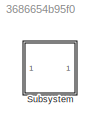
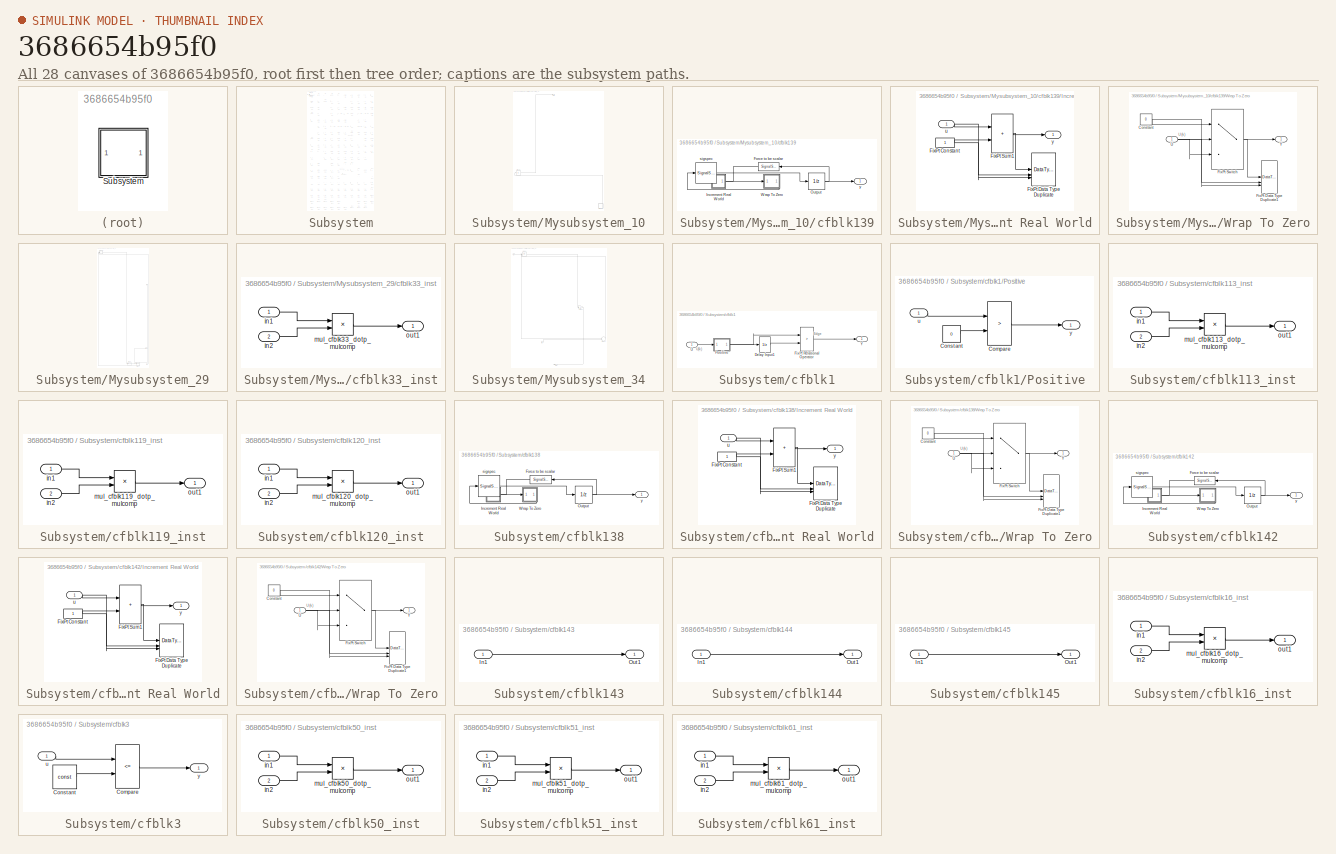
[diagram: thumbnail index - all 28 canvases of the model, root first then tree order]
MODEL slx_3686654b95f0
KIND model
CONFIG AbsTol = auto
CONFIG EnableMultiTasking = off
CONFIG FixedStep = auto
CONFIG MaxStep = auto
CONFIG MinStep = auto
CONFIG RelTol = 1e-3
CONFIG SampleTimeConstraint = Unconstrained
CONFIG SolverName = VariableStepAuto
CONFIG StartTime = 0.0
CONFIG StopTime = 10.0
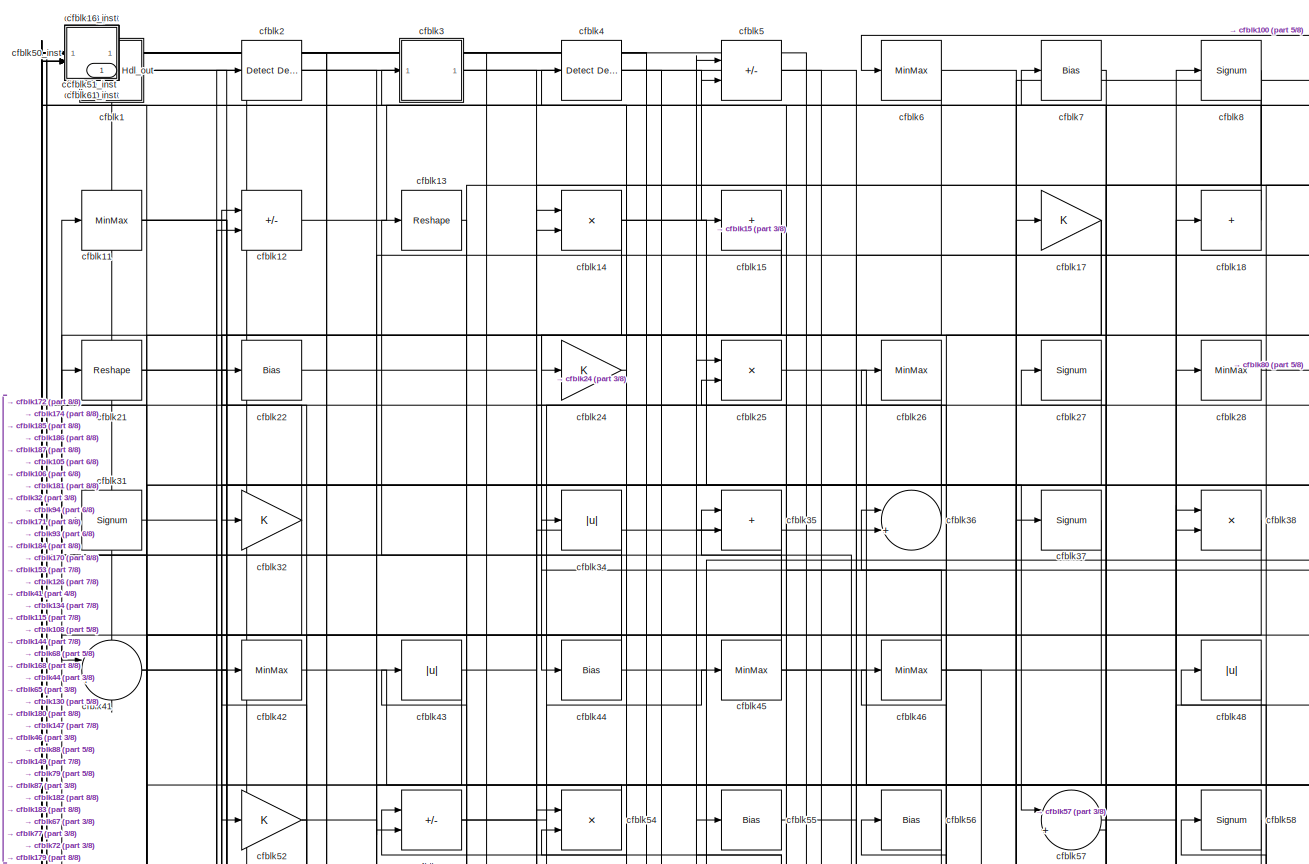
[diagram: Subsystem - part 1/8, full width, top band]
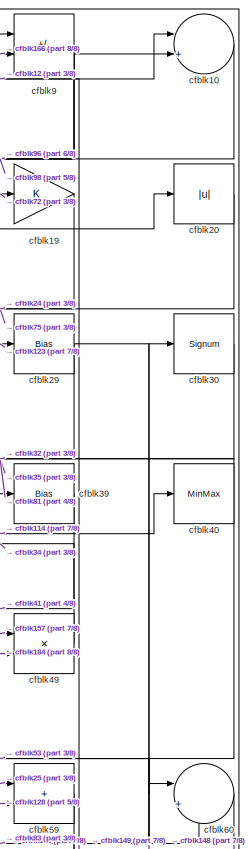
[diagram: Subsystem - part 2/8, top right region]
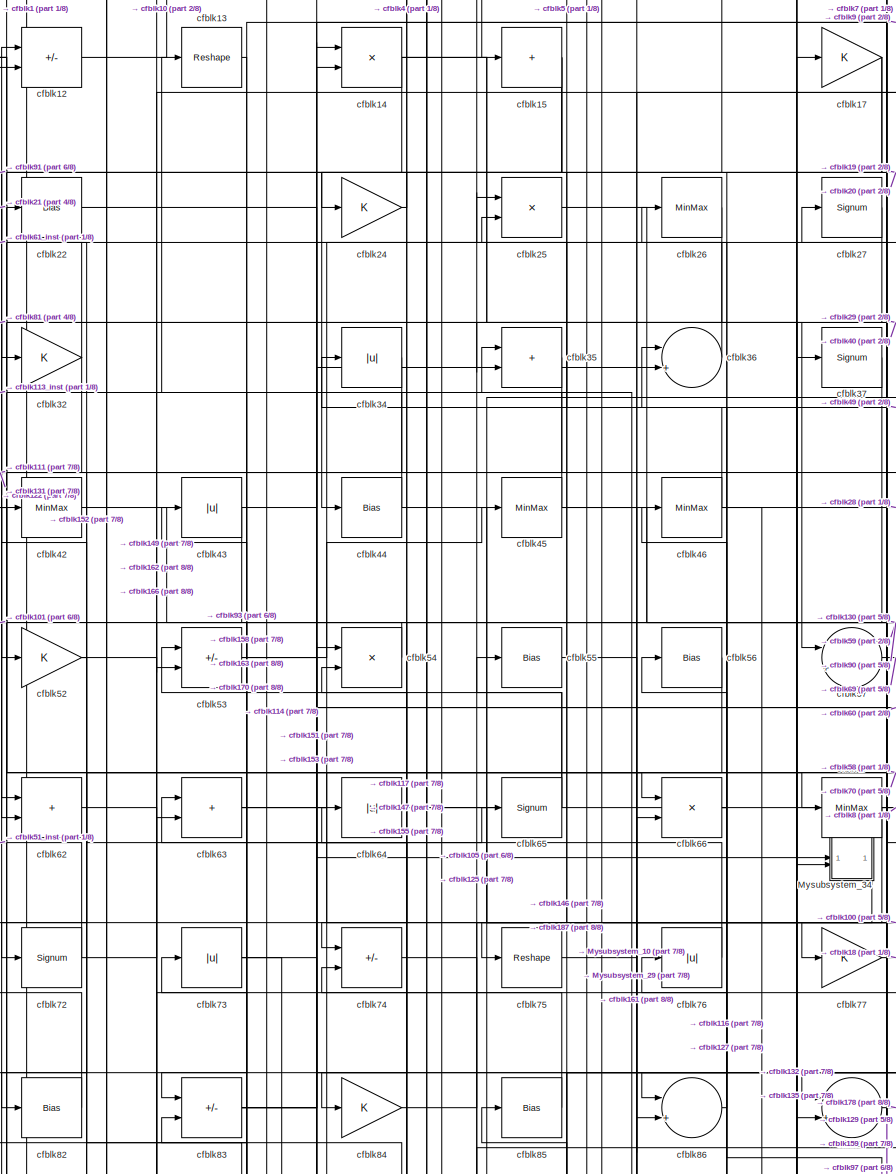
[diagram: Subsystem - part 3/8, top center region]
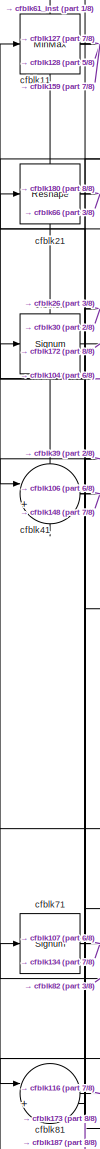
[diagram: Subsystem - part 4/8, top left region]
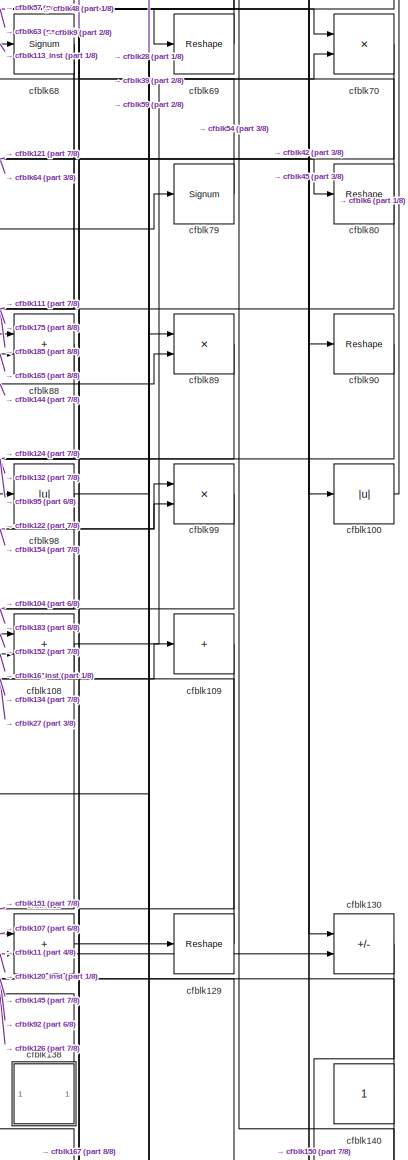
[diagram: Subsystem - part 5/8, middle right region]
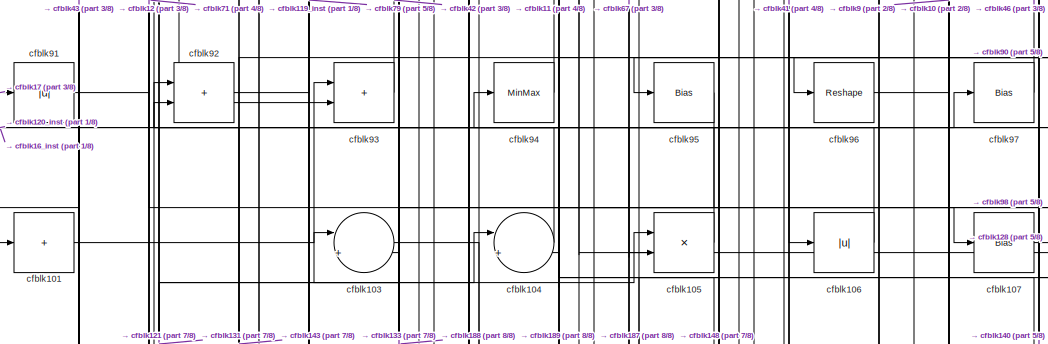
[diagram: Subsystem - part 6/8, central region]
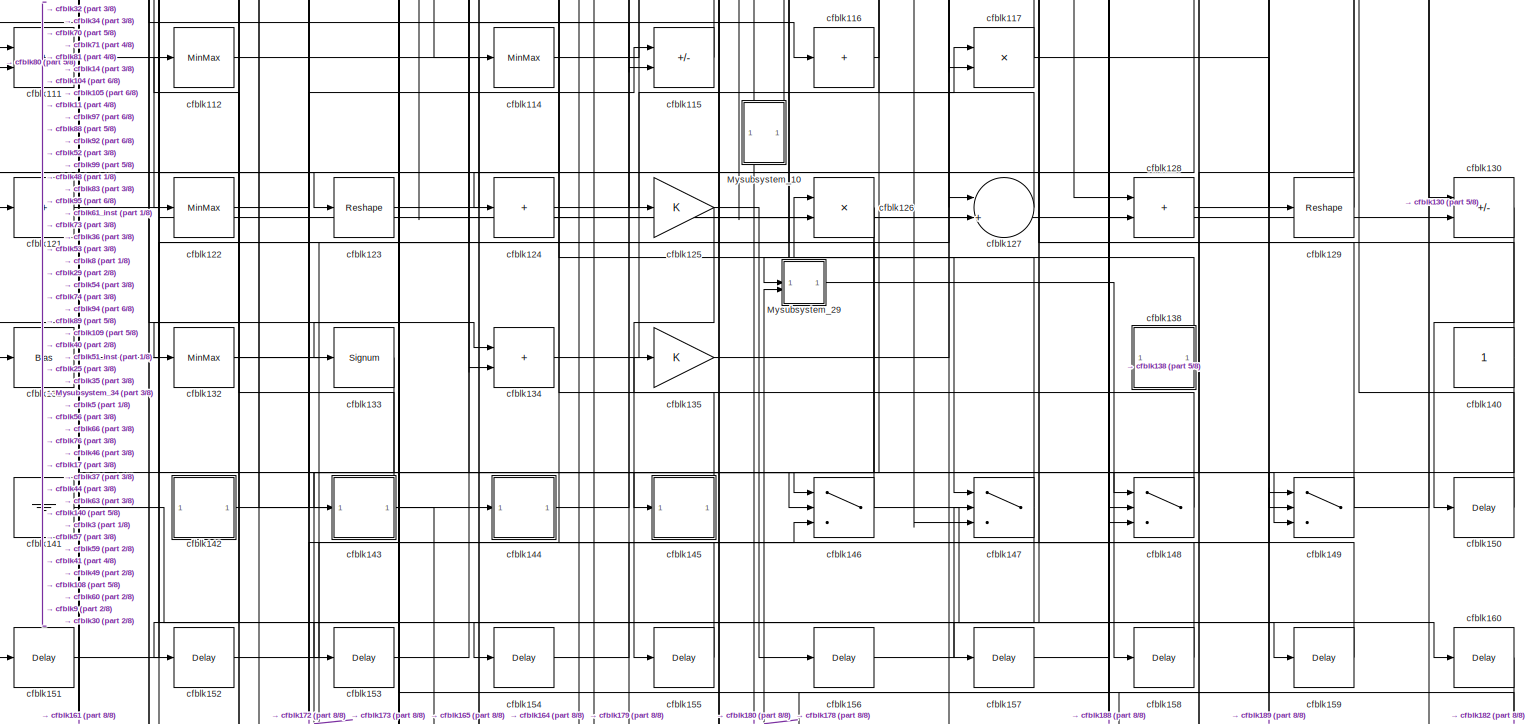
[diagram: Subsystem - part 7/8, full width, bottom band]
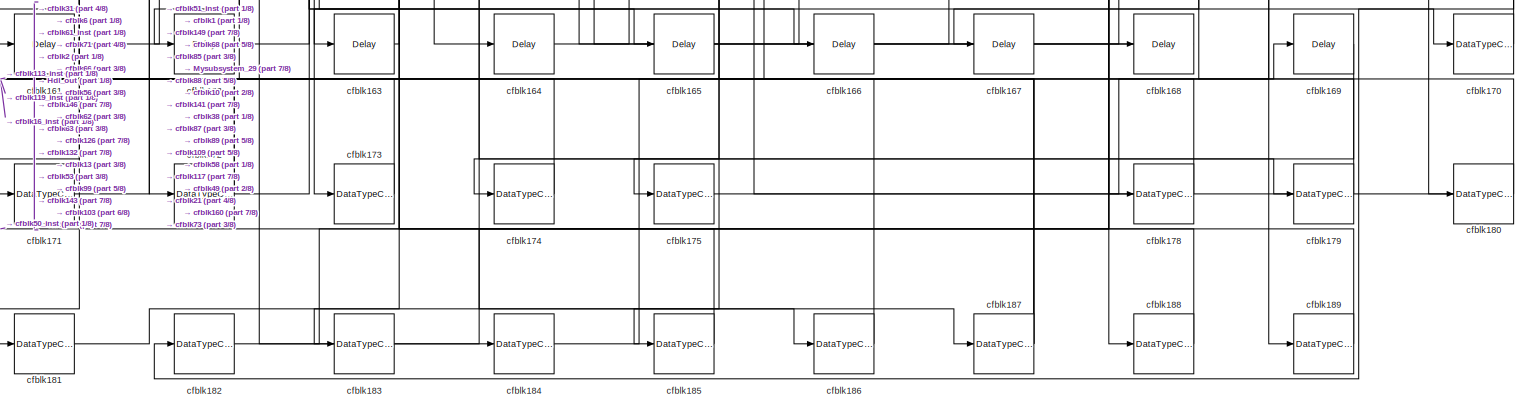
[diagram: Subsystem - part 8/8, full width, bottom band]
BLOCK [SubSystem] Subsystem
BLOCK [Outport] Subsystem/Hdl_out
  OutDataTypeStr = uint8
  SampleTime = 1
BLOCK [SubSystem] Subsystem/Mysubsystem_10
BLOCK [Outport] Subsystem/Mysubsystem_10/Out1
  SampleTime = 1
BLOCK [Abs] Subsystem/Mysubsystem_10/cfblk102
  SaturateOnIntegerOverflow = off
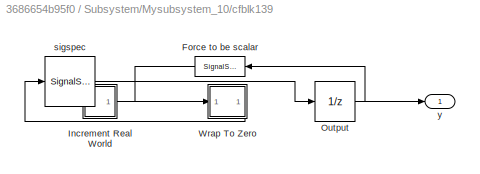
BLOCK [SubSystem] Subsystem/Mysubsystem_10/cfblk139
BLOCK [SignalSpecification] Subsystem/Mysubsystem_10/cfblk139/Force to be scalar
  Dimensions = 1
  DisableCoverage = on
BLOCK [SubSystem] Subsystem/Mysubsystem_10/cfblk139/Increment Real World
BLOCK [Constant] Subsystem/Mysubsystem_10/cfblk139/Increment Real World/FixPt Constant
  DisableCoverage = on
  OutDataTypeStr = Inherit: Inherit via back propagation
  SampleTime = -1
BLOCK [DataTypeDuplicate] Subsystem/Mysubsystem_10/cfblk139/Increment Real World/FixPt Data Type Duplicate
  DisableCoverage = on
  NumInputPorts = 3
BLOCK [Sum] Subsystem/Mysubsystem_10/cfblk139/Increment Real World/FixPt Sum1
  IconShape = rectangular
  InputSameDT = on
  LockScale = on
  OutDataTypeStr = Inherit: Inherit via back propagation
BLOCK [Inport] Subsystem/Mysubsystem_10/cfblk139/Increment Real World/u
  OutDataTypeStr = uint8
  SampleTime = 1
BLOCK [Outport] Subsystem/Mysubsystem_10/cfblk139/Increment Real World/y
  SampleTime = 1
BLOCK [UnitDelay] Subsystem/Mysubsystem_10/cfblk139/Output
  HasFrameUpgradeWarning = on
  InitialCondition = 0.0
  SampleTime = tsamp
BLOCK [SubSystem] Subsystem/Mysubsystem_10/cfblk139/Wrap To Zero
BLOCK [Constant] Subsystem/Mysubsystem_10/cfblk139/Wrap To Zero/Constant
  DisableCoverage = on
  OutDataTypeStr = Inherit: Inherit via back propagation
  SampleTime = -1
  Value = 0
BLOCK [DataTypeDuplicate] Subsystem/Mysubsystem_10/cfblk139/Wrap To Zero/FixPt Data Type Duplicate1
  DisableCoverage = on
  NumInputPorts = 3
BLOCK [Switch] Subsystem/Mysubsystem_10/cfblk139/Wrap To Zero/FixPt Switch
  Criteria = u2 > Threshold
  InputSameDT = off
  OutDataTypeStr = Inherit: Inherit via back propagation
  SaturateOnIntegerOverflow = off
  Threshold = Threshold
  ZeroCross = off
BLOCK [Inport] Subsystem/Mysubsystem_10/cfblk139/Wrap To Zero/U
  OutDataTypeStr = uint8
  SampleTime = 1
BLOCK [Outport] Subsystem/Mysubsystem_10/cfblk139/Wrap To Zero/Y
  SampleTime = 1
BLOCK [SignalSpecification] Subsystem/Mysubsystem_10/cfblk139/sigspec
  Dimensions = 1
  OutDataTypeStr = uint8
BLOCK [Outport] Subsystem/Mysubsystem_10/cfblk139/y
  SampleTime = 1
BLOCK [SubSystem] Subsystem/Mysubsystem_29
BLOCK [Inport] Subsystem/Mysubsystem_29/In1
  OutDataTypeStr = fixdt(0, 16, 7)
  PortDimensions = 1
  SampleTime = 1
BLOCK [Inport] Subsystem/Mysubsystem_29/In2
  OutDataTypeStr = uint8
  Port = 2
  PortDimensions = 1
  SampleTime = 1
BLOCK [Outport] Subsystem/Mysubsystem_29/Out1
  SampleTime = 1
BLOCK [DataTypeConversion] Subsystem/Mysubsystem_29/cfblk176
  RndMeth = Floor
  SaturateOnIntegerOverflow = off
BLOCK [DataTypeConversion] Subsystem/Mysubsystem_29/cfblk177
  OutDataTypeStr = uint8
  RndMeth = Floor
  SaturateOnIntegerOverflow = off
BLOCK [SubSystem] Subsystem/Mysubsystem_29/cfblk33_inst
BLOCK [Inport] Subsystem/Mysubsystem_29/cfblk33_inst/in1
  OutDataTypeStr = uint8
  SampleTime = 1
BLOCK [Inport] Subsystem/Mysubsystem_29/cfblk33_inst/in2
  OutDataTypeStr = uint8
  Port = 2
  SampleTime = 1
BLOCK [Product] Subsystem/Mysubsystem_29/cfblk33_inst/mul_cfblk33_dotp_mulcomp
  Inputs = **
  OutDataTypeStr = uint16
  SampleTime = 1
BLOCK [Outport] Subsystem/Mysubsystem_29/cfblk33_inst/out1
  OutDataTypeStr = uint16
  SampleTime = 1
BLOCK [SubSystem] Subsystem/Mysubsystem_34
BLOCK [Inport] Subsystem/Mysubsystem_34/In1
  OutDataTypeStr = uint8
  PortDimensions = 1
  SampleTime = 1
BLOCK [Inport] Subsystem/Mysubsystem_34/In2
  OutDataTypeStr = uint8
  Port = 2
  PortDimensions = 1
  SampleTime = 1
BLOCK [Outport] Subsystem/Mysubsystem_34/Out1
  SampleTime = 1
BLOCK [Sum] Subsystem/Mysubsystem_34/cfblk110
  Inputs = |++
BLOCK [Bias] Subsystem/Mysubsystem_34/cfblk23
  Bias = 0.0
  SaturateOnIntegerOverflow = off
BLOCK [Gain] Subsystem/Mysubsystem_34/cfblk78
BLOCK [SubSystem] Subsystem/cfblk1
BLOCK [UnitDelay] Subsystem/cfblk1/Delay Input1
  Description = Store in Global RAM
  DisableCoverage = on
  HasFrameUpgradeWarning = on
  InitialCondition = vinit
  SampleTime = -1
BLOCK [RelationalOperator] Subsystem/cfblk1/FixPt Relational Operator
  InputSameDT = off
  Operator = >
  OutDataTypeStr = fixdt(0, 8)
  ZeroCross = off
BLOCK [SubSystem] Subsystem/cfblk1/Positive
BLOCK [RelationalOperator] Subsystem/cfblk1/Positive/Compare
  Operator = >
  OutDataTypeStr = boolean
  ZeroCross = off
BLOCK [Constant] Subsystem/cfblk1/Positive/Constant
  DisableCoverage = on
  OutDataTypeStr = Inherit: Inherit via back propagation
  PreserveConstantTs = on
  SampleTime = -1
  Value = 0
BLOCK [Inport] Subsystem/cfblk1/Positive/u
  OutDataTypeStr = uint8
  SampleTime = 1
BLOCK [Outport] Subsystem/cfblk1/Positive/y
  SampleTime = 1
BLOCK [Inport] Subsystem/cfblk1/U
  OutDataTypeStr = uint8
  SampleTime = 1
BLOCK [Outport] Subsystem/cfblk1/Y
  SampleTime = 1
BLOCK [Sum] Subsystem/cfblk10
  Inputs = |++
  OutDataTypeStr = uint8
BLOCK [Abs] Subsystem/cfblk100
  OutDataTypeStr = uint8
  SaturateOnIntegerOverflow = off
BLOCK [Sum] Subsystem/cfblk101
  IconShape = rectangular
  Inputs = +
  OutDataTypeStr = uint8
BLOCK [Sum] Subsystem/cfblk103
  Inputs = |++
  OutDataTypeStr = uint8
BLOCK [Sum] Subsystem/cfblk104
  Inputs = |++
  OutDataTypeStr = uint8
BLOCK [Product] Subsystem/cfblk105
  Inputs = */
  OutDataTypeStr = uint8
  RndMeth = Zero
  SaturateOnIntegerOverflow = on
BLOCK [Abs] Subsystem/cfblk106
  OutDataTypeStr = uint8
  SaturateOnIntegerOverflow = off
BLOCK [Bias] Subsystem/cfblk107
  Bias = 0.0
  SaturateOnIntegerOverflow = off
BLOCK [Sum] Subsystem/cfblk108
  IconShape = rectangular
  OutDataTypeStr = uint8
BLOCK [Sum] Subsystem/cfblk109
  IconShape = rectangular
  Inputs = +
  OutDataTypeStr = uint8
BLOCK [MinMax] Subsystem/cfblk11
  OutDataTypeStr = uint8
BLOCK [Sum] Subsystem/cfblk111
  IconShape = rectangular
  OutDataTypeStr = uint8
BLOCK [MinMax] Subsystem/cfblk112
  OutDataTypeStr = uint8
BLOCK [SubSystem] Subsystem/cfblk113_inst
BLOCK [Inport] Subsystem/cfblk113_inst/in1
  OutDataTypeStr = uint8
  SampleTime = 1
BLOCK [Inport] Subsystem/cfblk113_inst/in2
  OutDataTypeStr = uint8
  Port = 2
  SampleTime = 1
BLOCK [Product] Subsystem/cfblk113_inst/mul_cfblk113_dotp_mulcomp
  Inputs = **
  OutDataTypeStr = uint8
  SampleTime = 1
BLOCK [Outport] Subsystem/cfblk113_inst/out1
  OutDataTypeStr = uint8
  SampleTime = 1
BLOCK [MinMax] Subsystem/cfblk114
  OutDataTypeStr = uint8
BLOCK [Sum] Subsystem/cfblk115
  IconShape = rectangular
  Inputs = +-
  OutDataTypeStr = uint8
BLOCK [Sum] Subsystem/cfblk116
  IconShape = rectangular
  Inputs = +
  OutDataTypeStr = uint8
BLOCK [Product] Subsystem/cfblk117
  Inputs = */
  OutDataTypeStr = uint8
  RndMeth = Zero
  SaturateOnIntegerOverflow = on
BLOCK [SubSystem] Subsystem/cfblk119_inst
BLOCK [Inport] Subsystem/cfblk119_inst/in1
  OutDataTypeStr = uint8
  SampleTime = 1
BLOCK [Inport] Subsystem/cfblk119_inst/in2
  OutDataTypeStr = uint8
  Port = 2
  SampleTime = 1
BLOCK [Product] Subsystem/cfblk119_inst/mul_cfblk119_dotp_mulcomp
  Inputs = **
  OutDataTypeStr = uint8
  SampleTime = 1
BLOCK [Outport] Subsystem/cfblk119_inst/out1
  OutDataTypeStr = uint8
  SampleTime = 1
BLOCK [Sum] Subsystem/cfblk12
  IconShape = rectangular
  Inputs = +-
  OutDataTypeStr = uint8
BLOCK [SubSystem] Subsystem/cfblk120_inst
BLOCK [Inport] Subsystem/cfblk120_inst/in1
  OutDataTypeStr = uint8
  SampleTime = 1
BLOCK [Inport] Subsystem/cfblk120_inst/in2
  OutDataTypeStr = uint8
  Port = 2
  SampleTime = 1
BLOCK [Product] Subsystem/cfblk120_inst/mul_cfblk120_dotp_mulcomp
  Inputs = **
  OutDataTypeStr = uint8
  SampleTime = 1
BLOCK [Outport] Subsystem/cfblk120_inst/out1
  OutDataTypeStr = uint8
  SampleTime = 1
BLOCK [Sum] Subsystem/cfblk121
  IconShape = rectangular
  Inputs = +
  OutDataTypeStr = uint8
BLOCK [MinMax] Subsystem/cfblk122
  OutDataTypeStr = uint8
BLOCK [Reshape] Subsystem/cfblk123
BLOCK [Sum] Subsystem/cfblk124
  IconShape = rectangular
  Inputs = +
  OutDataTypeStr = uint8
BLOCK [Gain] Subsystem/cfblk125
  OutDataTypeStr = uint8
BLOCK [Product] Subsystem/cfblk126
  Inputs = */
  OutDataTypeStr = uint8
  RndMeth = Zero
  SaturateOnIntegerOverflow = on
BLOCK [Sum] Subsystem/cfblk127
  Inputs = |++
  OutDataTypeStr = uint8
BLOCK [Sum] Subsystem/cfblk128
  IconShape = rectangular
  OutDataTypeStr = uint8
BLOCK [Reshape] Subsystem/cfblk129
BLOCK [Reshape] Subsystem/cfblk13
BLOCK [Sum] Subsystem/cfblk130
  IconShape = rectangular
  Inputs = +-
  OutDataTypeStr = uint8
BLOCK [Bias] Subsystem/cfblk131
  Bias = 0.0
  SaturateOnIntegerOverflow = off
BLOCK [MinMax] Subsystem/cfblk132
  OutDataTypeStr = uint8
BLOCK [Signum] Subsystem/cfblk133
BLOCK [Sum] Subsystem/cfblk134
  IconShape = rectangular
  OutDataTypeStr = uint8
BLOCK [Gain] Subsystem/cfblk135
  OutDataTypeStr = uint8
BLOCK [SubSystem] Subsystem/cfblk138
BLOCK [SignalSpecification] Subsystem/cfblk138/Force to be scalar
  Dimensions = 1
  DisableCoverage = on
BLOCK [SubSystem] Subsystem/cfblk138/Increment Real World
BLOCK [Constant] Subsystem/cfblk138/Increment Real World/FixPt Constant
  DisableCoverage = on
  OutDataTypeStr = Inherit: Inherit via back propagation
  SampleTime = -1
BLOCK [DataTypeDuplicate] Subsystem/cfblk138/Increment Real World/FixPt Data Type Duplicate
  DisableCoverage = on
  NumInputPorts = 3
BLOCK [Sum] Subsystem/cfblk138/Increment Real World/FixPt Sum1
  IconShape = rectangular
  InputSameDT = on
  LockScale = on
  OutDataTypeStr = Inherit: Inherit via back propagation
BLOCK [Inport] Subsystem/cfblk138/Increment Real World/u
  OutDataTypeStr = uint16
  SampleTime = 1
BLOCK [Outport] Subsystem/cfblk138/Increment Real World/y
  SampleTime = 1
BLOCK [UnitDelay] Subsystem/cfblk138/Output
  HasFrameUpgradeWarning = on
  InitialCondition = 0.0
  SampleTime = tsamp
BLOCK [SubSystem] Subsystem/cfblk138/Wrap To Zero
BLOCK [Constant] Subsystem/cfblk138/Wrap To Zero/Constant
  DisableCoverage = on
  OutDataTypeStr = Inherit: Inherit via back propagation
  SampleTime = -1
  Value = 0
BLOCK [DataTypeDuplicate] Subsystem/cfblk138/Wrap To Zero/FixPt Data Type Duplicate1
  DisableCoverage = on
  NumInputPorts = 3
BLOCK [Switch] Subsystem/cfblk138/Wrap To Zero/FixPt Switch
  Criteria = u2 > Threshold
  InputSameDT = off
  OutDataTypeStr = Inherit: Inherit via back propagation
  SaturateOnIntegerOverflow = off
  Threshold = Threshold
  ZeroCross = off
BLOCK [Inport] Subsystem/cfblk138/Wrap To Zero/U
  OutDataTypeStr = uint16
  SampleTime = 1
BLOCK [Outport] Subsystem/cfblk138/Wrap To Zero/Y
  SampleTime = 1
BLOCK [SignalSpecification] Subsystem/cfblk138/sigspec
  Dimensions = 1
  OutDataTypeStr = uint16
BLOCK [Outport] Subsystem/cfblk138/y
  SampleTime = 1
BLOCK [Product] Subsystem/cfblk14
  Inputs = */
  OutDataTypeStr = uint8
  RndMeth = Zero
  SaturateOnIntegerOverflow = on
BLOCK [Constant] Subsystem/cfblk140
  OutDataTypeStr = uint8
  SampleTime = -1
BLOCK [Ground] Subsystem/cfblk141
BLOCK [SubSystem] Subsystem/cfblk142
BLOCK [SignalSpecification] Subsystem/cfblk142/Force to be scalar
  Dimensions = 1
  DisableCoverage = on
BLOCK [SubSystem] Subsystem/cfblk142/Increment Real World
BLOCK [Constant] Subsystem/cfblk142/Increment Real World/FixPt Constant
  DisableCoverage = on
  OutDataTypeStr = Inherit: Inherit via back propagation
  SampleTime = -1
BLOCK [DataTypeDuplicate] Subsystem/cfblk142/Increment Real World/FixPt Data Type Duplicate
  DisableCoverage = on
  NumInputPorts = 3
BLOCK [Sum] Subsystem/cfblk142/Increment Real World/FixPt Sum1
  IconShape = rectangular
  InputSameDT = on
  LockScale = on
  OutDataTypeStr = Inherit: Inherit via back propagation
BLOCK [Inport] Subsystem/cfblk142/Increment Real World/u
  OutDataTypeStr = uint8
  SampleTime = 1
BLOCK [Outport] Subsystem/cfblk142/Increment Real World/y
  SampleTime = 1
BLOCK [UnitDelay] Subsystem/cfblk142/Output
  HasFrameUpgradeWarning = on
  InitialCondition = 0.0
  SampleTime = tsamp
BLOCK [SubSystem] Subsystem/cfblk142/Wrap To Zero
BLOCK [Constant] Subsystem/cfblk142/Wrap To Zero/Constant
  DisableCoverage = on
  OutDataTypeStr = Inherit: Inherit via back propagation
  SampleTime = -1
  Value = 0
BLOCK [DataTypeDuplicate] Subsystem/cfblk142/Wrap To Zero/FixPt Data Type Duplicate1
  DisableCoverage = on
  NumInputPorts = 3
BLOCK [Switch] Subsystem/cfblk142/Wrap To Zero/FixPt Switch
  Criteria = u2 > Threshold
  InputSameDT = off
  OutDataTypeStr = Inherit: Inherit via back propagation
  SaturateOnIntegerOverflow = off
  Threshold = Threshold
  ZeroCross = off
BLOCK [Inport] Subsystem/cfblk142/Wrap To Zero/U
  OutDataTypeStr = uint8
  SampleTime = 1
BLOCK [Outport] Subsystem/cfblk142/Wrap To Zero/Y
  SampleTime = 1
BLOCK [SignalSpecification] Subsystem/cfblk142/sigspec
  Dimensions = 1
  OutDataTypeStr = uint8
BLOCK [Outport] Subsystem/cfblk142/y
  SampleTime = 1
BLOCK [SubSystem] Subsystem/cfblk143
BLOCK [Inport] Subsystem/cfblk143/In1
  OutDataTypeStr = uint8
  PortDimensions = 1
  SampleTime = 1
BLOCK [Outport] Subsystem/cfblk143/Out1
  SampleTime = 1
BLOCK [SubSystem] Subsystem/cfblk144
BLOCK [Inport] Subsystem/cfblk144/In1
  OutDataTypeStr = uint8
  PortDimensions = 1
  SampleTime = 1
BLOCK [Outport] Subsystem/cfblk144/Out1
  SampleTime = 1
BLOCK [SubSystem] Subsystem/cfblk145
BLOCK [Inport] Subsystem/cfblk145/In1
  OutDataTypeStr = uint8
  PortDimensions = 1
  SampleTime = 1
BLOCK [Outport] Subsystem/cfblk145/Out1
  SampleTime = 1
BLOCK [Switch] Subsystem/cfblk146
  InputSameDT = off
  OutDataTypeStr = uint8
  SaturateOnIntegerOverflow = off
BLOCK [Switch] Subsystem/cfblk147
  InputSameDT = off
  OutDataTypeStr = uint8
  SaturateOnIntegerOverflow = off
BLOCK [Switch] Subsystem/cfblk148
  InputSameDT = off
  OutDataTypeStr = uint8
  SaturateOnIntegerOverflow = off
BLOCK [Switch] Subsystem/cfblk149
  InputSameDT = off
  OutDataTypeStr = uint8
  SaturateOnIntegerOverflow = off
BLOCK [Sum] Subsystem/cfblk15
  IconShape = rectangular
  Inputs = +
  OutDataTypeStr = uint8
BLOCK [Delay] Subsystem/cfblk150
  InputPortMap = u0
  SampleTime = 1
BLOCK [Delay] Subsystem/cfblk151
  InputPortMap = u0
  SampleTime = 1
BLOCK [Delay] Subsystem/cfblk152
  InputPortMap = u0
  SampleTime = 1
BLOCK [Delay] Subsystem/cfblk153
  InputPortMap = u0
  SampleTime = 1
BLOCK [Delay] Subsystem/cfblk154
  InputPortMap = u0
  SampleTime = 1
BLOCK [Delay] Subsystem/cfblk155
  InputPortMap = u0
  SampleTime = 1
BLOCK [Delay] Subsystem/cfblk156
  InputPortMap = u0
  SampleTime = 1
BLOCK [Delay] Subsystem/cfblk157
  InputPortMap = u0
  SampleTime = 1
BLOCK [Delay] Subsystem/cfblk158
  InputPortMap = u0
  SampleTime = 1
BLOCK [Delay] Subsystem/cfblk159
  InputPortMap = u0
  SampleTime = 1
BLOCK [Delay] Subsystem/cfblk160
  InputPortMap = u0
  SampleTime = 1
BLOCK [Delay] Subsystem/cfblk161
  InputPortMap = u0
  SampleTime = 1
BLOCK [Delay] Subsystem/cfblk162
  InputPortMap = u0
  SampleTime = 1
BLOCK [Delay] Subsystem/cfblk163
  InputPortMap = u0
  SampleTime = 1
BLOCK [Delay] Subsystem/cfblk164
  InputPortMap = u0
  SampleTime = 1
BLOCK [Delay] Subsystem/cfblk165
  InputPortMap = u0
  SampleTime = 1
BLOCK [Delay] Subsystem/cfblk166
  InputPortMap = u0
  SampleTime = 1
BLOCK [Delay] Subsystem/cfblk167
  InputPortMap = u0
  SampleTime = 1
BLOCK [Delay] Subsystem/cfblk168
  InputPortMap = u0
  SampleTime = 1
BLOCK [Delay] Subsystem/cfblk169
  InputPortMap = u0
  SampleTime = 1
BLOCK [SubSystem] Subsystem/cfblk16_inst
BLOCK [Inport] Subsystem/cfblk16_inst/in1
  OutDataTypeStr = uint8
  SampleTime = 1
BLOCK [Inport] Subsystem/cfblk16_inst/in2
  OutDataTypeStr = uint8
  Port = 2
  SampleTime = 1
BLOCK [Product] Subsystem/cfblk16_inst/mul_cfblk16_dotp_mulcomp
  Inputs = **
  OutDataTypeStr = uint8
  SampleTime = 1
BLOCK [Outport] Subsystem/cfblk16_inst/out1
  OutDataTypeStr = uint8
  SampleTime = 1
BLOCK [Gain] Subsystem/cfblk17
  OutDataTypeStr = uint8
BLOCK [DataTypeConversion] Subsystem/cfblk170
  OutDataTypeStr = uint8
  RndMeth = Floor
  SaturateOnIntegerOverflow = off
BLOCK [DataTypeConversion] Subsystem/cfblk171
  OutDataTypeStr = uint8
  RndMeth = Floor
  SaturateOnIntegerOverflow = off
BLOCK [DataTypeConversion] Subsystem/cfblk172
  OutDataTypeStr = uint8
  RndMeth = Floor
  SaturateOnIntegerOverflow = off
BLOCK [DataTypeConversion] Subsystem/cfblk173
  OutDataTypeStr = uint8
  RndMeth = Floor
  SaturateOnIntegerOverflow = off
BLOCK [DataTypeConversion] Subsystem/cfblk174
  OutDataTypeStr = uint8
  RndMeth = Floor
  SaturateOnIntegerOverflow = off
BLOCK [DataTypeConversion] Subsystem/cfblk175
  OutDataTypeStr = uint8
  RndMeth = Floor
  SaturateOnIntegerOverflow = off
BLOCK [DataTypeConversion] Subsystem/cfblk178
  OutDataTypeStr = uint8
  RndMeth = Floor
  SaturateOnIntegerOverflow = off
BLOCK [DataTypeConversion] Subsystem/cfblk179
  OutDataTypeStr = uint8
  RndMeth = Floor
  SaturateOnIntegerOverflow = off
BLOCK [Sum] Subsystem/cfblk18
  IconShape = rectangular
  Inputs = +
  OutDataTypeStr = uint8
BLOCK [DataTypeConversion] Subsystem/cfblk180
  OutDataTypeStr = uint8
  RndMeth = Floor
  SaturateOnIntegerOverflow = off
BLOCK [DataTypeConversion] Subsystem/cfblk181
  OutDataTypeStr = uint8
  RndMeth = Floor
  SaturateOnIntegerOverflow = off
BLOCK [DataTypeConversion] Subsystem/cfblk182
  OutDataTypeStr = uint8
  RndMeth = Floor
  SaturateOnIntegerOverflow = off
BLOCK [DataTypeConversion] Subsystem/cfblk183
  OutDataTypeStr = uint8
  RndMeth = Floor
  SaturateOnIntegerOverflow = off
BLOCK [DataTypeConversion] Subsystem/cfblk184
  OutDataTypeStr = uint8
  RndMeth = Floor
  SaturateOnIntegerOverflow = off
BLOCK [DataTypeConversion] Subsystem/cfblk185
  OutDataTypeStr = uint8
  RndMeth = Floor
  SaturateOnIntegerOverflow = off
BLOCK [DataTypeConversion] Subsystem/cfblk186
  OutDataTypeStr = uint8
  RndMeth = Floor
  SaturateOnIntegerOverflow = off
BLOCK [DataTypeConversion] Subsystem/cfblk187
  OutDataTypeStr = uint8
  RndMeth = Floor
  SaturateOnIntegerOverflow = off
BLOCK [DataTypeConversion] Subsystem/cfblk188
  OutDataTypeStr = uint8
  RndMeth = Floor
  SaturateOnIntegerOverflow = off
BLOCK [DataTypeConversion] Subsystem/cfblk189
  OutDataTypeStr = uint8
  RndMeth = Floor
  SaturateOnIntegerOverflow = off
BLOCK [Gain] Subsystem/cfblk19
  OutDataTypeStr = uint8
BLOCK [Reference] Subsystem/cfblk2  REF=simulink/Logic and Bit
Operations/Detect
Decrease
  LibrarySourceBlock = hdlsllib/Logic and Bit\nOperations/Detect\nDecrease
  SourceBlock = simulink/Logic and Bit\nOperations/Detect\nDecrease
  SourceType = Detect Decrease
BLOCK [Abs] Subsystem/cfblk20
  OutDataTypeStr = uint8
  SaturateOnIntegerOverflow = off
BLOCK [Reshape] Subsystem/cfblk21
BLOCK [Bias] Subsystem/cfblk22
  Bias = 0.0
  SaturateOnIntegerOverflow = off
BLOCK [Gain] Subsystem/cfblk24
  OutDataTypeStr = uint8
BLOCK [Product] Subsystem/cfblk25
  Inputs = */
  OutDataTypeStr = uint8
  RndMeth = Zero
  SaturateOnIntegerOverflow = on
BLOCK [MinMax] Subsystem/cfblk26
  OutDataTypeStr = uint8
BLOCK [Signum] Subsystem/cfblk27
BLOCK [MinMax] Subsystem/cfblk28
  OutDataTypeStr = uint8
BLOCK [Bias] Subsystem/cfblk29
  Bias = 0.0
  SaturateOnIntegerOverflow = off
BLOCK [SubSystem] Subsystem/cfblk3
BLOCK [RelationalOperator] Subsystem/cfblk3/Compare
  Operator = <=
  OutDataTypeStr = fixdt(0, 8)
BLOCK [Constant] Subsystem/cfblk3/Constant
  DisableCoverage = on
  OutDataTypeStr = Inherit: Inherit via back propagation
  SampleTime = -1
  Value = const
BLOCK [Inport] Subsystem/cfblk3/u
  OutDataTypeStr = uint8
  SampleTime = 1
BLOCK [Outport] Subsystem/cfblk3/y
  SampleTime = 1
BLOCK [Signum] Subsystem/cfblk30
BLOCK [Signum] Subsystem/cfblk31
BLOCK [Gain] Subsystem/cfblk32
  OutDataTypeStr = uint8
BLOCK [Abs] Subsystem/cfblk34
  OutDataTypeStr = uint8
  SaturateOnIntegerOverflow = off
BLOCK [Sum] Subsystem/cfblk35
  IconShape = rectangular
  OutDataTypeStr = uint8
BLOCK [Sum] Subsystem/cfblk36
  Inputs = |++
  OutDataTypeStr = uint8
BLOCK [Signum] Subsystem/cfblk37
BLOCK [Product] Subsystem/cfblk38
  Inputs = */
  OutDataTypeStr = uint8
  RndMeth = Zero
  SaturateOnIntegerOverflow = on
BLOCK [Bias] Subsystem/cfblk39
  Bias = 0.0
  SaturateOnIntegerOverflow = off
BLOCK [Reference] Subsystem/cfblk4  REF=simulink/Logic and Bit
Operations/Detect
Decrease
  LibrarySourceBlock = hdlsllib/Logic and Bit\nOperations/Detect\nDecrease
  SourceBlock = simulink/Logic and Bit\nOperations/Detect\nDecrease
  SourceType = Detect Decrease
BLOCK [MinMax] Subsystem/cfblk40
  OutDataTypeStr = uint8
BLOCK [Sum] Subsystem/cfblk41
  Inputs = |++
  OutDataTypeStr = uint8
BLOCK [MinMax] Subsystem/cfblk42
  OutDataTypeStr = uint8
BLOCK [Abs] Subsystem/cfblk43
  OutDataTypeStr = uint8
  SaturateOnIntegerOverflow = off
BLOCK [Bias] Subsystem/cfblk44
  Bias = 0.0
  SaturateOnIntegerOverflow = off
BLOCK [MinMax] Subsystem/cfblk45
  OutDataTypeStr = uint8
BLOCK [MinMax] Subsystem/cfblk46
  OutDataTypeStr = uint8
BLOCK [Abs] Subsystem/cfblk48
  OutDataTypeStr = uint8
  SaturateOnIntegerOverflow = off
BLOCK [Product] Subsystem/cfblk49
  Inputs = */
  OutDataTypeStr = uint8
  RndMeth = Zero
  SaturateOnIntegerOverflow = on
BLOCK [Sum] Subsystem/cfblk5
  IconShape = rectangular
  Inputs = +-
  OutDataTypeStr = uint8
BLOCK [SubSystem] Subsystem/cfblk50_inst
BLOCK [Inport] Subsystem/cfblk50_inst/in1
  OutDataTypeStr = uint8
  SampleTime = 1
BLOCK [Inport] Subsystem/cfblk50_inst/in2
  OutDataTypeStr = uint8
  Port = 2
  SampleTime = 1
BLOCK [Product] Subsystem/cfblk50_inst/mul_cfblk50_dotp_mulcomp
  Inputs = **
  OutDataTypeStr = uint8
  SampleTime = 1
BLOCK [Outport] Subsystem/cfblk50_inst/out1
  OutDataTypeStr = uint8
  SampleTime = 1
BLOCK [SubSystem] Subsystem/cfblk51_inst
BLOCK [Inport] Subsystem/cfblk51_inst/in1
  OutDataTypeStr = uint8
  SampleTime = 1
BLOCK [Inport] Subsystem/cfblk51_inst/in2
  OutDataTypeStr = uint8
  Port = 2
  SampleTime = 1
BLOCK [Product] Subsystem/cfblk51_inst/mul_cfblk51_dotp_mulcomp
  Inputs = **
  OutDataTypeStr = uint8
  SampleTime = 1
BLOCK [Outport] Subsystem/cfblk51_inst/out1
  OutDataTypeStr = uint8
  SampleTime = 1
BLOCK [Gain] Subsystem/cfblk52
  OutDataTypeStr = uint8
BLOCK [Sum] Subsystem/cfblk53
  IconShape = rectangular
  Inputs = +-
  OutDataTypeStr = uint8
BLOCK [Product] Subsystem/cfblk54
  Inputs = */
  OutDataTypeStr = uint8
  RndMeth = Zero
  SaturateOnIntegerOverflow = on
BLOCK [Bias] Subsystem/cfblk55
  Bias = 0.0
  SaturateOnIntegerOverflow = off
BLOCK [Bias] Subsystem/cfblk56
  Bias = 0.0
  SaturateOnIntegerOverflow = off
BLOCK [Sum] Subsystem/cfblk57
  Inputs = |++
  OutDataTypeStr = uint8
BLOCK [Signum] Subsystem/cfblk58
BLOCK [Sum] Subsystem/cfblk59
  IconShape = rectangular
  OutDataTypeStr = uint8
BLOCK [MinMax] Subsystem/cfblk6
  OutDataTypeStr = uint8
BLOCK [Sum] Subsystem/cfblk60
  Inputs = |++
  OutDataTypeStr = uint8
BLOCK [SubSystem] Subsystem/cfblk61_inst
BLOCK [Inport] Subsystem/cfblk61_inst/in1
  OutDataTypeStr = uint8
  SampleTime = 1
BLOCK [Inport] Subsystem/cfblk61_inst/in2
  OutDataTypeStr = uint8
  Port = 2
  SampleTime = 1
BLOCK [Product] Subsystem/cfblk61_inst/mul_cfblk61_dotp_mulcomp
  Inputs = **
  OutDataTypeStr = uint8
  SampleTime = 1
BLOCK [Outport] Subsystem/cfblk61_inst/out1
  OutDataTypeStr = uint8
  SampleTime = 1
BLOCK [Sum] Subsystem/cfblk62
  IconShape = rectangular
  OutDataTypeStr = uint8
BLOCK [Sum] Subsystem/cfblk63
  IconShape = rectangular
  OutDataTypeStr = uint8
BLOCK [Abs] Subsystem/cfblk64
  OutDataTypeStr = uint8
  SaturateOnIntegerOverflow = off
BLOCK [Signum] Subsystem/cfblk65
BLOCK [Product] Subsystem/cfblk66
  Inputs = */
  OutDataTypeStr = uint8
  RndMeth = Zero
  SaturateOnIntegerOverflow = on
BLOCK [MinMax] Subsystem/cfblk67
  OutDataTypeStr = uint8
BLOCK [Signum] Subsystem/cfblk68
BLOCK [Reshape] Subsystem/cfblk69
BLOCK [Bias] Subsystem/cfblk7
  Bias = 0.0
  SaturateOnIntegerOverflow = off
BLOCK [Product] Subsystem/cfblk70
  Inputs = */
  OutDataTypeStr = uint8
  RndMeth = Zero
  SaturateOnIntegerOverflow = on
BLOCK [Signum] Subsystem/cfblk71
BLOCK [Signum] Subsystem/cfblk72
BLOCK [Abs] Subsystem/cfblk73
  OutDataTypeStr = uint8
  SaturateOnIntegerOverflow = off
BLOCK [Sum] Subsystem/cfblk74
  IconShape = rectangular
  Inputs = +-
  OutDataTypeStr = uint8
BLOCK [Reshape] Subsystem/cfblk75
BLOCK [Abs] Subsystem/cfblk76
  OutDataTypeStr = uint8
  SaturateOnIntegerOverflow = off
BLOCK [Gain] Subsystem/cfblk77
  OutDataTypeStr = uint8
BLOCK [Signum] Subsystem/cfblk79
BLOCK [Signum] Subsystem/cfblk8
BLOCK [Reshape] Subsystem/cfblk80
BLOCK [Sum] Subsystem/cfblk81
  Inputs = |++
  OutDataTypeStr = uint8
BLOCK [Bias] Subsystem/cfblk82
  Bias = 0.0
  SaturateOnIntegerOverflow = off
BLOCK [Sum] Subsystem/cfblk83
  IconShape = rectangular
  Inputs = +-
  OutDataTypeStr = uint8
BLOCK [Gain] Subsystem/cfblk84
  OutDataTypeStr = uint8
BLOCK [Bias] Subsystem/cfblk85
  Bias = 0.0
  SaturateOnIntegerOverflow = off
BLOCK [Sum] Subsystem/cfblk86
  Inputs = |++
  OutDataTypeStr = uint8
BLOCK [Sum] Subsystem/cfblk87
  Inputs = |++
  OutDataTypeStr = uint8
BLOCK [Sum] Subsystem/cfblk88
  IconShape = rectangular
  OutDataTypeStr = uint8
BLOCK [Product] Subsystem/cfblk89
  Inputs = */
  OutDataTypeStr = uint8
  RndMeth = Zero
  SaturateOnIntegerOverflow = on
BLOCK [Sum] Subsystem/cfblk9
  IconShape = rectangular
  Inputs = +-
  OutDataTypeStr = uint8
BLOCK [Reshape] Subsystem/cfblk90
BLOCK [Abs] Subsystem/cfblk91
  OutDataTypeStr = uint8
  SaturateOnIntegerOverflow = off
BLOCK [Sum] Subsystem/cfblk92
  IconShape = rectangular
  OutDataTypeStr = uint8
BLOCK [Sum] Subsystem/cfblk93
  IconShape = rectangular
  OutDataTypeStr = uint8
BLOCK [MinMax] Subsystem/cfblk94
  OutDataTypeStr = uint8
BLOCK [Bias] Subsystem/cfblk95
  Bias = 0.0
  SaturateOnIntegerOverflow = off
BLOCK [Reshape] Subsystem/cfblk96
BLOCK [Bias] Subsystem/cfblk97
  Bias = 0.0
  SaturateOnIntegerOverflow = off
BLOCK [Abs] Subsystem/cfblk98
  OutDataTypeStr = uint8
  SaturateOnIntegerOverflow = off
BLOCK [Product] Subsystem/cfblk99
  Inputs = */
  OutDataTypeStr = uint8
  RndMeth = Zero
  SaturateOnIntegerOverflow = on
ANNOTATION Subsystem/Mysubsystem_10/cfblk139/Wrap To Zero: U(k)
ANNOTATION Subsystem/cfblk1: Edge
ANNOTATION Subsystem/cfblk1: U(k)
ANNOTATION Subsystem/cfblk138/Wrap To Zero: U(k)
ANNOTATION Subsystem/cfblk142/Wrap To Zero: U(k)
LINE Subsystem/Mysubsystem_10/cfblk102:1 -> Subsystem/Mysubsystem_10/Out1:1
LINE Subsystem/Mysubsystem_10/cfblk139:1 -> Subsystem/Mysubsystem_10/cfblk102:1
LINE Subsystem/Mysubsystem_10:1 -> Subsystem/cfblk35:1
LINE Subsystem/Mysubsystem_29/In1:1 -> Subsystem/Mysubsystem_29/cfblk177:1
LINE Subsystem/Mysubsystem_29/In2:1 -> Subsystem/Mysubsystem_29/cfblk33_inst:2
LINE Subsystem/Mysubsystem_29/cfblk176:1 -> Subsystem/Mysubsystem_29/Out1:1
LINE Subsystem/Mysubsystem_29/cfblk177:1 -> Subsystem/Mysubsystem_29/cfblk33_inst:1
LINE Subsystem/Mysubsystem_29/cfblk33_inst/in1:1 -> Subsystem/Mysubsystem_29/cfblk33_inst/mul_cfblk33_dotp_mulcomp:1
LINE Subsystem/Mysubsystem_29/cfblk33_inst/in2:1 -> Subsystem/Mysubsystem_29/cfblk33_inst/mul_cfblk33_dotp_mulcomp:2
LINE Subsystem/Mysubsystem_29/cfblk33_inst/mul_cfblk33_dotp_mulcomp:1 -> Subsystem/Mysubsystem_29/cfblk33_inst/out1:1
LINE Subsystem/Mysubsystem_29/cfblk33_inst:1 -> Subsystem/Mysubsystem_29/cfblk176:1
LINE Subsystem/Mysubsystem_29:1 -> Subsystem/cfblk158:1
LINE Subsystem/Mysubsystem_34/In1:1 -> Subsystem/Mysubsystem_34/cfblk110:1
LINE Subsystem/Mysubsystem_34/In2:1 -> Subsystem/Mysubsystem_34/cfblk110:2
LINE Subsystem/Mysubsystem_34/cfblk110:1 -> Subsystem/Mysubsystem_34/cfblk23:1
LINE Subsystem/Mysubsystem_34/cfblk23:1 -> Subsystem/Mysubsystem_34/cfblk78:1
LINE Subsystem/Mysubsystem_34/cfblk78:1 -> Subsystem/Mysubsystem_34/Out1:1
LINE Subsystem/Mysubsystem_34:1 -> Subsystem/Mysubsystem_29:1
LINE Subsystem/cfblk100:1 -> Subsystem/cfblk6:1
LINE Subsystem/cfblk101:1 -> Subsystem/cfblk93:1
LINE Subsystem/cfblk103:1 -> Subsystem/cfblk187:1
LINE Subsystem/cfblk104:1 -> Subsystem/cfblk11:1
LINE Subsystem/cfblk105:1 -> Subsystem/cfblk16_inst:1
LINE Subsystem/cfblk106:1 -> Subsystem/cfblk120_inst:2
LINE Subsystem/cfblk107:1 -> Subsystem/cfblk128:1
NET Subsystem/cfblk108:1 -> Subsystem/cfblk151:1, Subsystem/cfblk70:2
LINE Subsystem/cfblk109:1 -> Subsystem/cfblk167:1
LINE Subsystem/cfblk10:1 -> Subsystem/cfblk96:1
LINE Subsystem/cfblk111:1 -> Subsystem/cfblk123:1
LINE Subsystem/cfblk112:1 -> Subsystem/cfblk179:1
LINE Subsystem/cfblk113_inst/in1:1 -> Subsystem/cfblk113_inst/mul_cfblk113_dotp_mulcomp:1
LINE Subsystem/cfblk113_inst/in2:1 -> Subsystem/cfblk113_inst/mul_cfblk113_dotp_mulcomp:2
LINE Subsystem/cfblk113_inst/mul_cfblk113_dotp_mulcomp:1 -> Subsystem/cfblk113_inst/out1:1
LINE Subsystem/cfblk113_inst:1 -> Subsystem/cfblk68:1
LINE Subsystem/cfblk114:1 -> Subsystem/cfblk40:1
LINE Subsystem/cfblk115:1 -> Subsystem/cfblk51_inst:1
LINE Subsystem/cfblk116:1 -> Subsystem/cfblk56:1
NET Subsystem/cfblk117:1 -> Subsystem/cfblk189:1, Subsystem/cfblk63:1
LINE Subsystem/cfblk119_inst/in1:1 -> Subsystem/cfblk119_inst/mul_cfblk119_dotp_mulcomp:1
LINE Subsystem/cfblk119_inst/in2:1 -> Subsystem/cfblk119_inst/mul_cfblk119_dotp_mulcomp:2
LINE Subsystem/cfblk119_inst/mul_cfblk119_dotp_mulcomp:1 -> Subsystem/cfblk119_inst/out1:1
LINE Subsystem/cfblk119_inst:1 -> Subsystem/cfblk93:2
NET Subsystem/cfblk11:1 -> Subsystem/cfblk127:2, Subsystem/cfblk128:2, Subsystem/cfblk159:1
LINE Subsystem/cfblk120_inst/in1:1 -> Subsystem/cfblk120_inst/mul_cfblk120_dotp_mulcomp:1
LINE Subsystem/cfblk120_inst/in2:1 -> Subsystem/cfblk120_inst/mul_cfblk120_dotp_mulcomp:2
LINE Subsystem/cfblk120_inst/mul_cfblk120_dotp_mulcomp:1 -> Subsystem/cfblk120_inst/out1:1
LINE Subsystem/cfblk120_inst:1 -> Subsystem/cfblk130:2
LINE Subsystem/cfblk121:1 -> Subsystem/cfblk97:1
LINE Subsystem/cfblk122:1 -> Subsystem/cfblk99:1
LINE Subsystem/cfblk123:1 -> Subsystem/cfblk29:1
LINE Subsystem/cfblk124:1 -> Subsystem/cfblk117:1
NET Subsystem/cfblk125:1 -> Subsystem/cfblk155:1, Subsystem/cfblk156:1
NET Subsystem/cfblk126:1 -> Subsystem/cfblk161:1, Subsystem/cfblk173:1
LINE Subsystem/cfblk127:1 -> Subsystem/cfblk76:1
LINE Subsystem/cfblk128:1 -> Subsystem/cfblk59:2
LINE Subsystem/cfblk129:1 -> Subsystem/cfblk27:1
LINE Subsystem/cfblk12:1 -> Subsystem/cfblk10:1
LINE Subsystem/cfblk130:1 -> Subsystem/cfblk150:1
NET Subsystem/cfblk131:1 -> Subsystem/cfblk104:1, Subsystem/cfblk105:1, Subsystem/cfblk149:3
NET Subsystem/cfblk132:1 -> Subsystem/cfblk165:1, Subsystem/cfblk37:1
LINE Subsystem/cfblk133:1 -> Subsystem/cfblk143:1
LINE Subsystem/cfblk134:1 -> Subsystem/cfblk109:1
LINE Subsystem/cfblk135:1 -> Subsystem/cfblk17:1
LINE Subsystem/cfblk138:1 -> Subsystem/cfblk126:1
LINE Subsystem/cfblk13:1 -> Subsystem/cfblk163:1
NET Subsystem/cfblk140:1 -> Subsystem/cfblk145:1, Subsystem/cfblk92:1
LINE Subsystem/cfblk141:1 -> Subsystem/cfblk188:1
LINE Subsystem/cfblk142:1 -> Subsystem/cfblk115:1
LINE Subsystem/cfblk143/In1:1 -> Subsystem/cfblk143/Out1:1
NET Subsystem/cfblk143:1 -> Subsystem/cfblk164:1, Subsystem/cfblk92:2
LINE Subsystem/cfblk144/In1:1 -> Subsystem/cfblk144/Out1:1
LINE Subsystem/cfblk144:1 -> Subsystem/cfblk89:2
LINE Subsystem/cfblk145/In1:1 -> Subsystem/cfblk145/Out1:1
LINE Subsystem/cfblk145:1 -> Subsystem/cfblk135:1
NET Subsystem/cfblk146:1 -> Subsystem/cfblk160:1, Subsystem/cfblk25:2
NET Subsystem/cfblk147:1 -> Subsystem/cfblk154:1, Subsystem/cfblk74:2
LINE Subsystem/cfblk148:1 -> Subsystem/cfblk94:1
NET Subsystem/cfblk149:1 -> Subsystem/cfblk30:1, Subsystem/cfblk3:1
NET Subsystem/cfblk14:1 -> Subsystem/Mysubsystem_34:2, Subsystem/cfblk122:1, Subsystem/cfblk127:1
LINE Subsystem/cfblk150:1 -> Subsystem/cfblk9:1
LINE Subsystem/cfblk151:1 -> Subsystem/cfblk14:1
LINE Subsystem/cfblk152:1 -> Subsystem/cfblk108:1
LINE Subsystem/cfblk153:1 -> Subsystem/cfblk36:2
LINE Subsystem/cfblk154:1 -> Subsystem/cfblk99:2
LINE Subsystem/cfblk155:1 -> Subsystem/cfblk54:2
LINE Subsystem/cfblk156:1 -> Subsystem/cfblk147:2
LINE Subsystem/cfblk157:1 -> Subsystem/cfblk49:1
LINE Subsystem/cfblk158:1 -> Subsystem/cfblk83:2
LINE Subsystem/cfblk159:1 -> Subsystem/cfblk57:2
NET Subsystem/cfblk15:1 -> Subsystem/cfblk44:1, Subsystem/cfblk62:2, Subsystem/cfblk84:1
LINE Subsystem/cfblk160:1 -> Subsystem/cfblk182:1
LINE Subsystem/cfblk161:1 -> Subsystem/cfblk66:2
LINE Subsystem/cfblk162:1 -> Subsystem/cfblk63:2
LINE Subsystem/cfblk163:1 -> Subsystem/cfblk53:1
LINE Subsystem/cfblk164:1 -> Subsystem/cfblk149:1
LINE Subsystem/cfblk165:1 -> Subsystem/cfblk88:2
LINE Subsystem/cfblk166:1 -> Subsystem/cfblk10:2
LINE Subsystem/cfblk167:1 -> Subsystem/cfblk89:1
LINE Subsystem/cfblk168:1 -> Subsystem/cfblk1:1
LINE Subsystem/cfblk169:1 -> Subsystem/cfblk174:1
LINE Subsystem/cfblk16_inst/in1:1 -> Subsystem/cfblk16_inst/mul_cfblk16_dotp_mulcomp:1
LINE Subsystem/cfblk16_inst/in2:1 -> Subsystem/cfblk16_inst/mul_cfblk16_dotp_mulcomp:2
LINE Subsystem/cfblk16_inst/mul_cfblk16_dotp_mulcomp:1 -> Subsystem/cfblk16_inst/out1:1
LINE Subsystem/cfblk16_inst:1 -> Subsystem/cfblk108:2
LINE Subsystem/cfblk170:1 -> Subsystem/cfblk73:1
LINE Subsystem/cfblk171:1 -> Subsystem/cfblk2:1
NET Subsystem/cfblk172:1 -> Subsystem/cfblk119_inst:2, Subsystem/cfblk146:3, Subsystem/cfblk16_inst:2
LINE Subsystem/cfblk173:1 -> Subsystem/cfblk31:1
LINE Subsystem/cfblk174:1 -> Subsystem/cfblk113_inst:2
LINE Subsystem/cfblk175:1 -> Subsystem/cfblk169:1
LINE Subsystem/cfblk178:1 -> Subsystem/Mysubsystem_29:2
LINE Subsystem/cfblk179:1 -> Subsystem/cfblk58:1
NET Subsystem/cfblk17:1 -> Subsystem/cfblk86:1, Subsystem/cfblk91:1
NET Subsystem/cfblk180:1 -> Subsystem/Hdl_out:1, Subsystem/cfblk112:1
LINE Subsystem/cfblk181:1 -> Subsystem/cfblk186:1
LINE Subsystem/cfblk182:1 -> Subsystem/cfblk38:1
LINE Subsystem/cfblk183:1 -> Subsystem/cfblk38:2
LINE Subsystem/cfblk184:1 -> Subsystem/cfblk49:2
LINE Subsystem/cfblk185:1 -> Subsystem/cfblk50_inst:1
LINE Subsystem/cfblk186:1 -> Subsystem/cfblk50_inst:2
NET Subsystem/cfblk187:1 -> Subsystem/cfblk61_inst:1, Subsystem/cfblk71:1, Subsystem/cfblk85:1
LINE Subsystem/cfblk188:1 -> Subsystem/cfblk103:1
LINE Subsystem/cfblk189:1 -> Subsystem/cfblk103:2
LINE Subsystem/cfblk18:1 -> Subsystem/cfblk7:1
LINE Subsystem/cfblk19:1 -> Subsystem/cfblk75:1
LINE Subsystem/cfblk1:1 -> Subsystem/cfblk57:1
LINE Subsystem/cfblk20:1 -> Subsystem/cfblk24:1
NET Subsystem/cfblk21:1 -> Subsystem/cfblk180:1, Subsystem/cfblk66:1
LINE Subsystem/cfblk22:1 -> Subsystem/Mysubsystem_34:1
LINE Subsystem/cfblk24:1 -> Subsystem/cfblk4:1
LINE Subsystem/cfblk25:1 -> Subsystem/cfblk59:1
LINE Subsystem/cfblk26:1 -> Subsystem/cfblk81:2
LINE Subsystem/cfblk27:1 -> Subsystem/cfblk62:1
LINE Subsystem/cfblk28:1 -> Subsystem/cfblk80:1
NET Subsystem/cfblk29:1 -> Subsystem/cfblk35:2, Subsystem/cfblk60:1
LINE Subsystem/cfblk2:1 -> Subsystem/cfblk170:1
LINE Subsystem/cfblk30:1 -> Subsystem/cfblk81:1
LINE Subsystem/cfblk31:1 -> Subsystem/cfblk172:1
NET Subsystem/cfblk32:1 -> Subsystem/cfblk111:1, Subsystem/cfblk61_inst:2
LINE Subsystem/cfblk34:1 -> Subsystem/cfblk131:1
LINE Subsystem/cfblk35:1 -> Subsystem/cfblk152:1
LINE Subsystem/cfblk36:1 -> Subsystem/cfblk12:1
LINE Subsystem/cfblk37:1 -> Subsystem/cfblk74:1
LINE Subsystem/cfblk38:1 -> Subsystem/cfblk181:1
LINE Subsystem/cfblk39:1 -> Subsystem/cfblk41:1
LINE Subsystem/cfblk3:1 -> Subsystem/cfblk115:2
NET Subsystem/cfblk40:1 -> Subsystem/cfblk32:1, Subsystem/cfblk53:2
NET Subsystem/cfblk41:1 -> Subsystem/cfblk106:1, Subsystem/cfblk148:3
LINE Subsystem/cfblk42:1 -> Subsystem/cfblk130:1
NET Subsystem/cfblk43:1 -> Subsystem/cfblk101:1, Subsystem/cfblk14:2
NET Subsystem/cfblk44:1 -> Subsystem/cfblk113_inst:1, Subsystem/cfblk117:2
NET Subsystem/cfblk45:1 -> Subsystem/cfblk13:1, Subsystem/cfblk86:2, Subsystem/cfblk90:1
NET Subsystem/cfblk46:1 -> Subsystem/cfblk147:3, Subsystem/cfblk28:1, Subsystem/cfblk5:2
LINE Subsystem/cfblk48:1 -> Subsystem/cfblk153:1
LINE Subsystem/cfblk49:1 -> Subsystem/cfblk34:1
LINE Subsystem/cfblk4:1 -> Subsystem/cfblk15:1
LINE Subsystem/cfblk50_inst/in1:1 -> Subsystem/cfblk50_inst/mul_cfblk50_dotp_mulcomp:1
LINE Subsystem/cfblk50_inst/in2:1 -> Subsystem/cfblk50_inst/mul_cfblk50_dotp_mulcomp:2
LINE Subsystem/cfblk50_inst/mul_cfblk50_dotp_mulcomp:1 -> Subsystem/cfblk50_inst/out1:1
LINE Subsystem/cfblk50_inst:1 -> Subsystem/cfblk184:1
LINE Subsystem/cfblk51_inst/in1:1 -> Subsystem/cfblk51_inst/mul_cfblk51_dotp_mulcomp:1
LINE Subsystem/cfblk51_inst/in2:1 -> Subsystem/cfblk51_inst/mul_cfblk51_dotp_mulcomp:2
LINE Subsystem/cfblk51_inst/mul_cfblk51_dotp_mulcomp:1 -> Subsystem/cfblk51_inst/out1:1
NET Subsystem/cfblk51_inst:1 -> Subsystem/cfblk144:1, Subsystem/cfblk168:1
NET Subsystem/cfblk52:1 -> Subsystem/cfblk149:2, Subsystem/cfblk82:1
NET Subsystem/cfblk53:1 -> Subsystem/cfblk146:1, Subsystem/cfblk45:1
LINE Subsystem/cfblk54:1 -> Subsystem/cfblk52:1
LINE Subsystem/cfblk55:1 -> Subsystem/cfblk67:1
LINE Subsystem/cfblk56:1 -> Subsystem/cfblk162:1
LINE Subsystem/cfblk57:1 -> Subsystem/cfblk69:1
LINE Subsystem/cfblk58:1 -> Subsystem/cfblk72:1
LINE Subsystem/cfblk59:1 -> Subsystem/cfblk157:1
LINE Subsystem/cfblk5:1 -> Subsystem/cfblk147:1
LINE Subsystem/cfblk60:1 -> Subsystem/cfblk148:1
LINE Subsystem/cfblk61_inst/in1:1 -> Subsystem/cfblk61_inst/mul_cfblk61_dotp_mulcomp:1
LINE Subsystem/cfblk61_inst/in2:1 -> Subsystem/cfblk61_inst/mul_cfblk61_dotp_mulcomp:2
LINE Subsystem/cfblk61_inst/mul_cfblk61_dotp_mulcomp:1 -> Subsystem/cfblk61_inst/out1:1
NET Subsystem/cfblk61_inst:1 -> Subsystem/cfblk126:2, Subsystem/cfblk41:2
LINE Subsystem/cfblk62:1 -> Subsystem/cfblk166:1
NET Subsystem/cfblk63:1 -> Subsystem/cfblk100:1, Subsystem/cfblk70:1
LINE Subsystem/cfblk64:1 -> Subsystem/cfblk129:1
NET Subsystem/cfblk65:1 -> Subsystem/cfblk43:1, Subsystem/cfblk5:1
NET Subsystem/cfblk66:1 -> Subsystem/cfblk146:2, Subsystem/cfblk36:1
NET Subsystem/cfblk67:1 -> Subsystem/cfblk105:2, Subsystem/cfblk8:1
NET Subsystem/cfblk68:1 -> Subsystem/cfblk175:1, Subsystem/cfblk185:1
LINE Subsystem/cfblk69:1 -> Subsystem/cfblk54:1
NET Subsystem/cfblk6:1 -> Subsystem/cfblk171:1, Subsystem/cfblk88:1
LINE Subsystem/cfblk70:1 -> Subsystem/cfblk121:1
NET Subsystem/cfblk71:1 -> Subsystem/cfblk107:1, Subsystem/cfblk134:1
NET Subsystem/cfblk72:1 -> Subsystem/cfblk19:1, Subsystem/cfblk51_inst:2
NET Subsystem/cfblk73:1 -> Subsystem/cfblk114:1, Subsystem/cfblk87:2
LINE Subsystem/cfblk74:1 -> Subsystem/cfblk125:1
LINE Subsystem/cfblk75:1 -> Subsystem/cfblk20:1
LINE Subsystem/cfblk76:1 -> Subsystem/cfblk22:1
LINE Subsystem/cfblk77:1 -> Subsystem/cfblk18:1
LINE Subsystem/cfblk79:1 -> Subsystem/cfblk120_inst:1
LINE Subsystem/cfblk7:1 -> Subsystem/cfblk87:1
NET Subsystem/cfblk80:1 -> Subsystem/cfblk111:2, Subsystem/cfblk48:1
LINE Subsystem/cfblk81:1 -> Subsystem/cfblk116:1
LINE Subsystem/cfblk82:1 -> Subsystem/cfblk21:1
NET Subsystem/cfblk83:1 -> Subsystem/cfblk25:1, Subsystem/cfblk60:2, Subsystem/cfblk65:1
LINE Subsystem/cfblk84:1 -> Subsystem/cfblk55:1
LINE Subsystem/cfblk85:1 -> Subsystem/cfblk64:1
LINE Subsystem/cfblk86:1 -> Subsystem/cfblk26:1
LINE Subsystem/cfblk87:1 -> Subsystem/cfblk178:1
LINE Subsystem/cfblk88:1 -> Subsystem/cfblk132:1
LINE Subsystem/cfblk89:1 -> Subsystem/cfblk124:1
NET Subsystem/cfblk8:1 -> Subsystem/cfblk134:2, Subsystem/cfblk77:1
LINE Subsystem/cfblk90:1 -> Subsystem/cfblk95:1
LINE Subsystem/cfblk91:1 -> Subsystem/cfblk12:2
LINE Subsystem/cfblk92:1 -> Subsystem/cfblk79:1
LINE Subsystem/cfblk93:1 -> Subsystem/cfblk42:1
LINE Subsystem/cfblk94:1 -> Subsystem/cfblk119_inst:1
LINE Subsystem/cfblk95:1 -> Subsystem/cfblk133:1
LINE Subsystem/cfblk96:1 -> Subsystem/cfblk9:2
LINE Subsystem/cfblk97:1 -> Subsystem/cfblk46:1
NET Subsystem/cfblk98:1 -> Subsystem/cfblk104:2, Subsystem/cfblk39:1
LINE Subsystem/cfblk99:1 -> Subsystem/cfblk183:1
NET Subsystem/cfblk9:1 -> Subsystem/cfblk148:2, Subsystem/cfblk83:1, Subsystem/cfblk98:1
note: NET lines group one-source signal fan-out (src -> all destinations, sorted); 1:1 wires keep LINE
